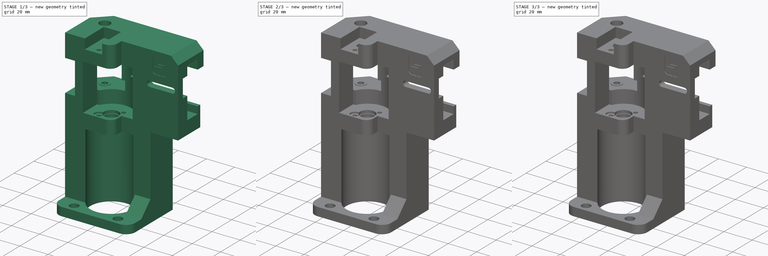
[diagram: build sequence overview — one tinted view per stage of 3, left to right]
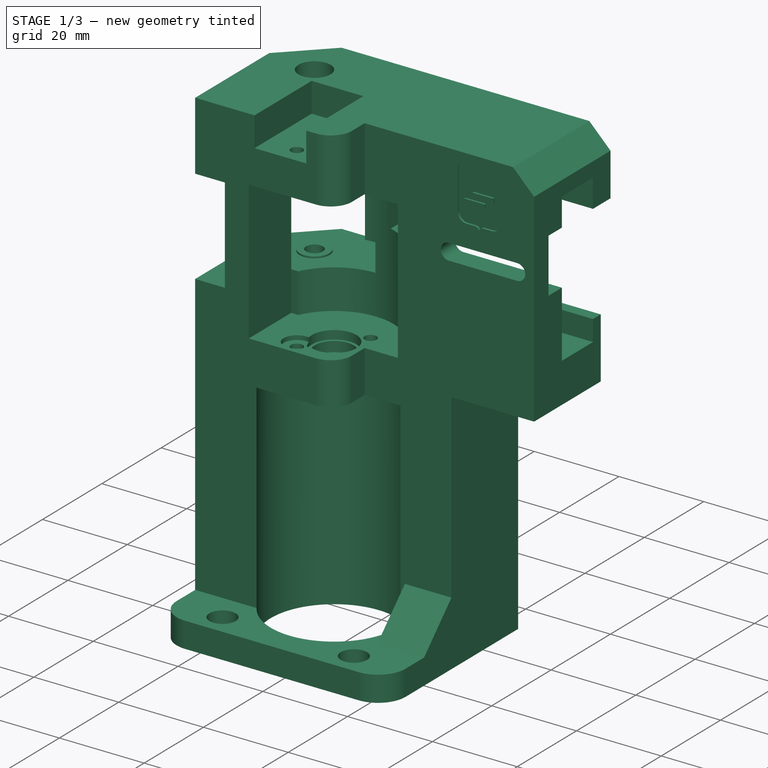
[diagram: stage 1 of 3 — iso view after this stage's code; geometry added in this stage tinted green]
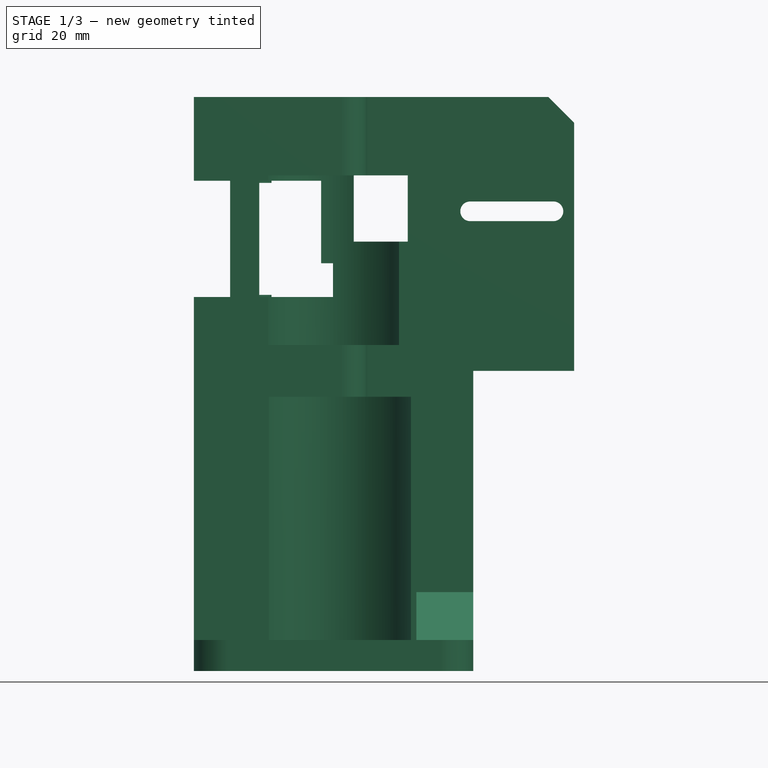
[diagram: stage 1 of 3 — front view after this stage's code; geometry added in this stage tinted green]
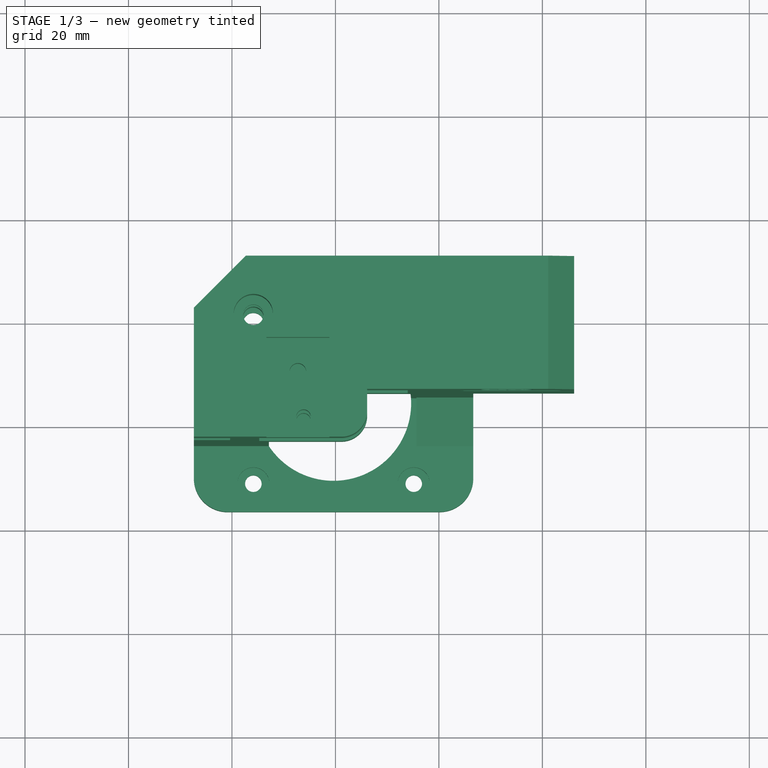
[diagram: stage 1 of 3 — top view after this stage's code; geometry added in this stage tinted green]
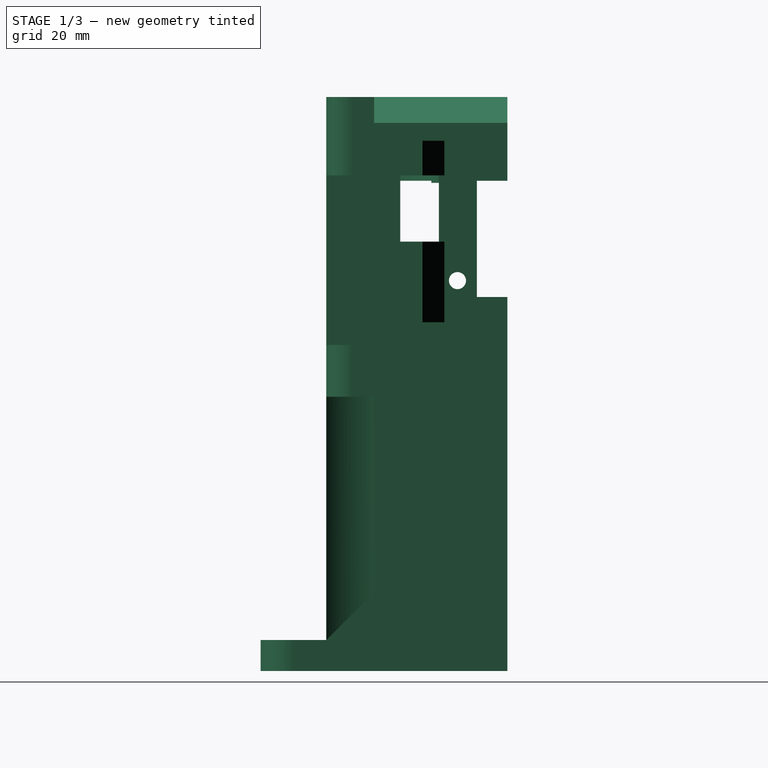
[diagram: stage 1 of 3 — right view after this stage's code; geometry added in this stage tinted green]
FCSTD DOCUMENT  (FreeCAD 1.0R38641 +468 (Git))
Label: k1_motor_mount_couplers_stock_left
License: All rights reserved
LicenseURL: https://en.wikipedia.org/wiki/All_rights_reserved
objects: App::Link×9, PartDesign::Pad×3, PartDesign::Pocket×3, Sketcher::SketchObject×2, Part::Feature×1, PartDesign::FeatureBase×1, PartDesign::Line×1, PartDesign::Body×1, App::Part×1
note: 27 computed .brp shape members not serialized (recipe doc carries the construction recipe); baked Part::Feature solids carry a one-line shape summary decoded from their .brp
EXTERNAL_REF file=cad_powge_pulley.FCStd obj=Part
EXTERNAL_REF file=cad_mf95zz.FCStd obj=Body
EXTERNAL_REF file=cad_motor_shaft_55mm.FCStd obj=Part__Feature
EXTERNAL_REF file=cad_20T_15mm_pulley.FCStd obj=Part
EXTERNAL_REF file=cad_nema17_42_60.FCStd obj=COMPOUND049
EXTERNAL_REF file=cad_diaphragm_coupler.FCStd obj=_764K239_NO_THREADS_Servomotor_Precision_Flexible_Shaft_Coupling013
EXTERNAL_REF file=cad_m4_35mm.FCStd obj=Part__Feature

FEATURE [Part::Feature] Part__Feature  label="step"
  shape: bbox 73.5 x 47.7 x 110.9 mm, 153 faces (baked)
FEATURE [PartDesign::FeatureBase] BaseFeature
  BaseFeature = -> Part__Feature
  Suppressed = false
FEATURE [PartDesign::Body] Body  label="k1_motor_mount_couplers_stock_left"
  AllowCompound = false
  BaseFeature = -> Part__Feature
  Group = -> [BaseFeature,DatumLine,Pad,Pad001,Sketch,Pocket,Pocket001,Pad002,Sketch002,Pocket002]
  Origin = -> Origin
  Placement = pos=(-50,-900,0) rot=(0,0,1;0rad)
  Tip = -> Pocket002
FEATURE [App::Part] Part  label="k1_motor_mount_couplers_stock_left_part"
  Group = -> [Part__Feature,Body,Link,Link001,Link002,Link003,Link004,Link005,Link006,Link007,Link008]
  Origin = -> Origin001

RESOLVED EXTERNAL PARTS (link-assembly join: the EXTERNAL_REF files above that resolve inside this repo's crawl, each included once):
---- part cad_mf95zz.FCStd = doc fcstd_1d361ef47ac8 ----
FCSTD DOCUMENT  (FreeCAD 1.0R38641 +468 (Git))
Label: cad_mf95zz
License: All rights reserved
LicenseURL: https://en.wikipedia.org/wiki/All_rights_reserved
objects: Sketcher::SketchObject×2, PartDesign::Pad×2, PartDesign::Body×1
note: 11 computed .brp shape members not serialized (recipe doc carries the construction recipe); baked Part::Feature solids carry a one-line shape summary decoded from their .brp

FEATURE [Sketcher::SketchObject] Sketch
  ArcFitTolerance = 1e-06
  AttachmentSupport = -> [XY_Plane]
  FullyConstrained = true
  MakeInternals = false
  MapMode = 5
  sketch-geometry (2):
    g0: Circle CenterX=0 CenterY=0 CenterZ=0 NormalX=0 NormalY=0 NormalZ=1 AngleXU=0 Radius=2.5
    g1: Circle CenterX=0 CenterY=0 CenterZ=0 NormalX=0 NormalY=0 NormalZ=1 AngleXU=0 Radius=4.5
  constraints (4):
    c: Coincident(g0,g-1)
    c: Coincident(g1,g0)
    c: Diameter(g1) = 9
    c: Diameter(g0) = 5
FEATURE [PartDesign::Pad] Pad
  Direction = (0,0,1)
  Length = 3
  Length2 = 10
  Profile = -> Sketch
  ReferenceAxis = -> Sketch [N_Axis]
  Refine = true
  Suppressed = false
  Type = 0
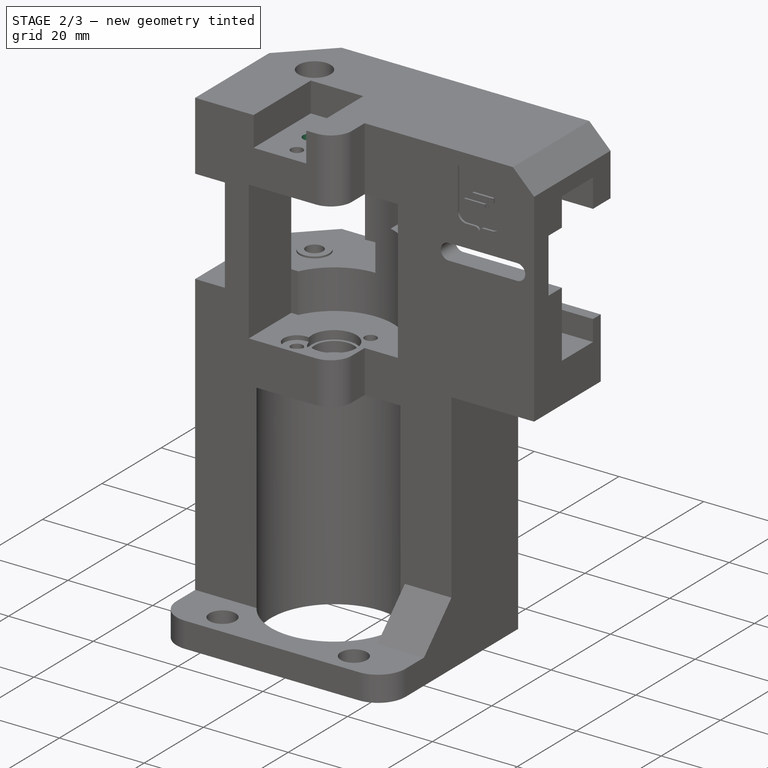
[diagram: stage 2 of 3 — iso view after this stage's code; geometry added in this stage tinted green]
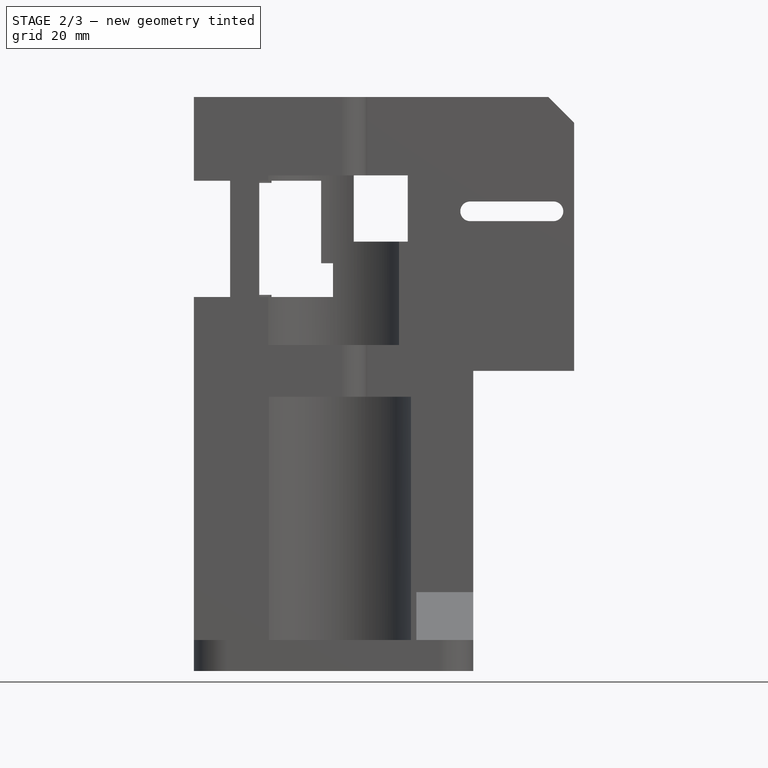
[diagram: stage 2 of 3 — front view after this stage's code; geometry added in this stage tinted green]
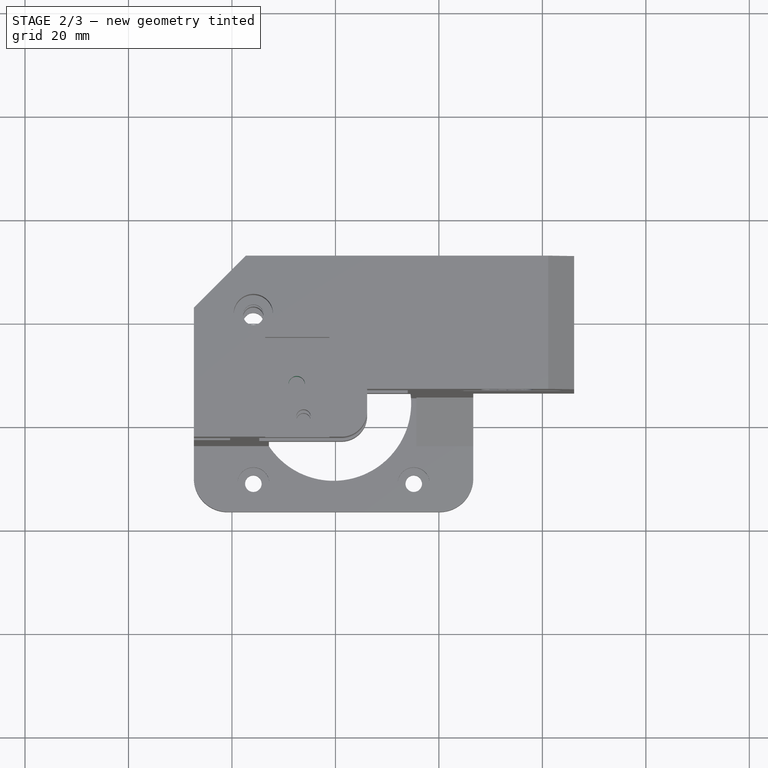
[diagram: stage 2 of 3 — top view after this stage's code; geometry added in this stage tinted green]
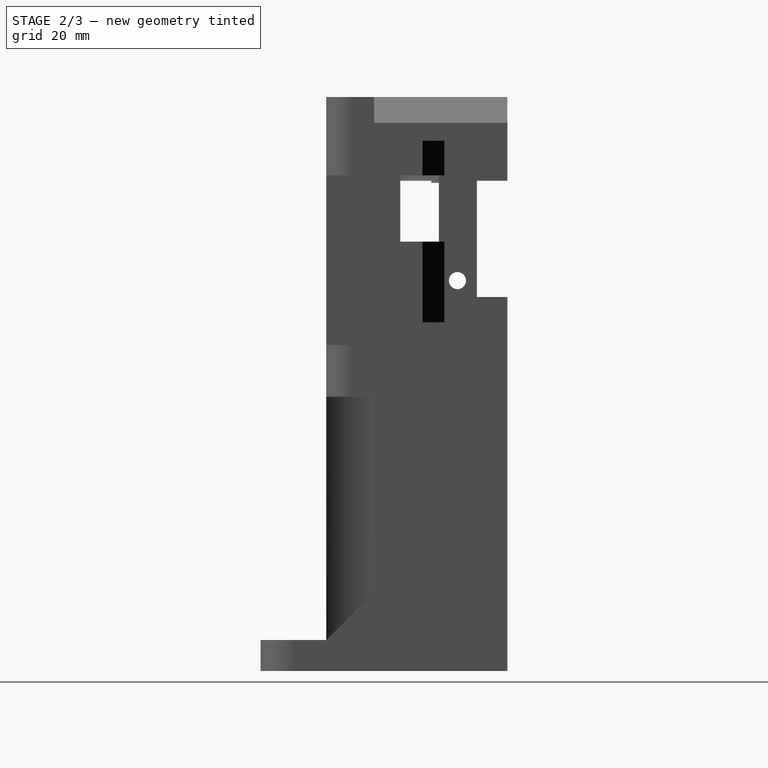
[diagram: stage 2 of 3 — right view after this stage's code; geometry added in this stage tinted green]
FEATURE [App::Link] Link  label="cad_powge_pulley_top_link"
  LinkPlacement = pos=(14.1406,100.078,20.85) rot=(0,0,1;0rad)
  LinkedObject = -> <external cad_powge_pulley.FCStd>#Part
  Placement = pos=(14.1406,100.078,20.85) rot=(0,0,1;0rad)
FEATURE [App::Link] Link001  label="cad_powge_pulley_bottom_link"
  LinkPlacement = pos=(14.1406,100.078,9.7) rot=(0,0,1;0rad)
  LinkedObject = -> <external cad_powge_pulley.FCStd>#Part
  Placement = pos=(14.1406,100.078,9.7) rot=(0,0,1;0rad)
FEATURE [App::Link] Link002  label="cad_mf95zz_top_link"
  LinkPlacement = pos=(29.6406,84.5783,37.2) rot=(0,1,0;3.14159rad)
  LinkedObject = -> <external cad_mf95zz.FCStd>#Body
  Placement = pos=(29.6406,84.5783,37.2) rot=(0,1,0;3.14159rad)
FEATURE [App::Link] Link003  label="cad_mf95zz_bottom_link"
  LinkPlacement = pos=(29.6406,84.5783,-4.4) rot=(0,0,1;3.14159rad)
  LinkedObject = -> <external cad_mf95zz.FCStd>#Body
  Placement = pos=(29.6406,84.5783,-4.4) rot=(0,0,1;3.14159rad)
FEATURE [App::Link] Link004  label="cad_motor_shaft_55mm_link"
  LinkPlacement = pos=(370.445,-290.422,175.11) rot=(0,0,1;0rad)
  LinkedObject = -> <external cad_motor_shaft_55mm.FCStd>#Part__Feature
  Placement = pos=(370.445,-290.422,175.11) rot=(0,0,1;0rad)
FEATURE [App::Link] Link005  label="cad_20T_15mm_pulley_link"
  LinkPlacement = pos=(117.263,15.5011,1.55198) rot=(0,1,0;3.14159rad)
  LinkedObject = -> <external cad_20T_15mm_pulley.FCStd>#Part
  Placement = pos=(117.263,15.5011,1.55198) rot=(0,1,0;3.14159rad)
FEATURE [App::Link] Link006  label="cad_nema17_42_60_link"
  LinkPlacement = pos=(29.6406,84.5783,-79.702) rot=(0,0,1;0rad)
  LinkedObject = -> <external cad_nema17_42_60.FCStd>#COMPOUND049
  Placement = pos=(29.6406,84.5783,-79.702) rot=(0,0,1;0rad)
FEATURE [App::Link] Link007  label="cad_diaphragm_coupler_5_5_link"
  LinkPlacement = pos=(370.37,-290.416,168.405) rot=(0,0,1;0rad)
  LinkedObject = -> <external cad_diaphragm_coupler.FCStd>#_764K239_NO_THREADS_Servomotor_Precision_Flexible_Shaft_Coupling013
  Placement = pos=(370.37,-290.416,168.405) rot=(0,0,1;0rad)
FEATURE [App::Link] Link008  label="cad_m4_35mm_link"
  LinkPlacement = pos=(14.1406,100.078,0.376278) rot=(0,0,1;0rad)
  LinkedObject = -> <external cad_m4_35mm.FCStd>#Part__Feature
  Placement = pos=(14.1406,100.078,0.376278) rot=(0,0,1;0rad)
FEATURE [PartDesign::Line] DatumLine  label="rails_mount"
  AttacherType = Attacher::AttachEngineLine
  AttachmentOffset = pos=(-0.22,-2.5,0) rot=(0,0,1;0rad)
  AttachmentSupport = -> [BaseFeature]
  Length = 20
  MapMode = 19
  Placement = pos=(72.5256,986.528,40.945) rot=(0,0,1;0rad)
  ResizeMode = 0
FEATURE [PartDesign::Pad] Pad
  BaseFeature = -> BaseFeature
  Direction = (4.42e-14,0,-1)
  Length = 10
  Length2 = 10
  Profile = -> BaseFeature [Face49]
  Refine = true
  Suppressed = false
  Type = 3
  UpToFace = -> BaseFeature [Face17]
FEATURE [PartDesign::Pad] Pad001
  BaseFeature = -> Pad
  Direction = (0,0,1)
  Length = 10
  Length2 = 10
  Profile = -> Pad [Edge129]
  Refine = true
  Suppressed = false
  Type = 3
  UpToFace = -> Pad [Face140]
FEATURE [Sketcher::SketchObject] Sketch
  ArcFitTolerance = 1e-06
  AttachmentSupport = -> [Pad001]
  ExternalGeometry = -> [DatumLine]
  FullyConstrained = true
  MakeInternals = false
  MapMode = 5
  Placement = pos=(0,-9.3e-15,40.945) rot=(0,0,1;0rad)
  sketch-geometry (1):
    g0: Circle CenterX=72.5256 CenterY=986.528 CenterZ=0 NormalX=0 NormalY=0 NormalZ=1 AngleXU=0 Radius=1.6
  constraints (2):
    c: Coincident(g0,g-3)
    c: Diameter(g0) = 3.2
FEATURE [PartDesign::Pocket] Pocket  label="mount_hole"
  BaseFeature = -> Pad001
  Direction = (0,0,-1)
  Length = 10
  Length2 = 5
  Profile = -> Sketch
  ReferenceAxis = -> Sketch [N_Axis]
  Refine = true
  Suppressed = false
  Type = 0
FEATURE [PartDesign::Pocket] Pocket001  label="move_left_wall"
  BaseFeature = -> Pocket
  Direction = (-1,0,0)
  Length = 0.225
  Length2 = 5
  Profile = -> Pocket [Face18]
  Refine = true
  Suppressed = false
  Type = 0
FEATURE [Sketcher::SketchObject] Sketch001
  ArcFitTolerance = 1e-06
  AttachmentSupport = -> [Pad]
  FullyConstrained = true
  MakeInternals = false
  MapMode = 5
  Placement = pos=(0,0,3) rot=(0,0,1;0rad)
  sketch-geometry (2):
    g0: Circle CenterX=0 CenterY=0 CenterZ=0 NormalX=0 NormalY=0 NormalZ=1 AngleXU=0 Radius=5.1
    g1: Circle CenterX=0 CenterY=0 CenterZ=0 NormalX=0 NormalY=0 NormalZ=1 AngleXU=0 Radius=2.5
  constraints (4):
    c: Coincident(g0,g-1)
    c: Coincident(g1,g0)
    c: Diameter(g1) = 5
    c: Diameter(g0) = 10.2
FEATURE [PartDesign::Pad] Pad001
  BaseFeature = -> Pad
  Direction = (0,0,1)
  Length = 0.6
  Length2 = 10
  Profile = -> Sketch001
  ReferenceAxis = -> Sketch001 [N_Axis]
  Refine = true
  Reversed = true
  Suppressed = false
  Type = 0
FEATURE [PartDesign::Body] Body  label="cad_mf95zz"
  AllowCompound = false
  Group = -> [Sketch,Pad,Sketch001,Pad001]
  Origin = -> Origin
  Tip = -> Pad001
---- part cad_powge_pulley.FCStd = doc fcstd_d49da9a9e340 ----
FCSTD DOCUMENT  (FreeCAD 1.0R38641 +468 (Git))
Label: cad_powge_pulley
License: All rights reserved
LicenseURL: https://en.wikipedia.org/wiki/All_rights_reserved
objects: Sketcher::SketchObject×1, PartDesign::Revolution×1, PartDesign::Body×1, App::Part×1
note: 6 computed .brp shape members not serialized (recipe doc carries the construction recipe); baked Part::Feature solids carry a one-line shape summary decoded from their .brp

FEATURE [Sketcher::SketchObject] Sketch
  ArcFitTolerance = 1e-06
  AttachmentSupport = -> [XZ_Plane]
  FullyConstrained = true
  MakeInternals = false
  MapMode = 5
  Placement = pos=(0,0,0) rot=(1,0,0;1.5708rad)
  sketch-geometry (8):
    g0: LineSegment StartX=6.1 StartY=9.3 StartZ=0 EndX=6.1 EndY=1.2 EndZ=0
    g1: LineSegment StartX=6.1 StartY=1.2 StartZ=0 EndX=8 EndY=1.2 EndZ=0
    g2: LineSegment StartX=8 StartY=1.2 StartZ=0 EndX=8 EndY=0 EndZ=0
    g3: LineSegment StartX=8 StartY=0 StartZ=0 EndX=2 EndY=0 EndZ=0
    g4: LineSegment StartX=2 StartY=0 StartZ=0 EndX=2 EndY=10.5 EndZ=0
    g5: LineSegment StartX=2 StartY=10.5 StartZ=0 EndX=8 EndY=10.5 EndZ=0
    g6: LineSegment StartX=8 StartY=10.5 StartZ=0 EndX=8 EndY=9.3 EndZ=0
    g7: LineSegment StartX=8 StartY=9.3 StartZ=0 EndX=6.1 EndY=9.3 EndZ=0
  constraints (24):
    c: Vertical(g0)
    c: Coincident(g1,g0)
    c: Horizontal(g1)
    c: Coincident(g2,g1)
    c: PointOnObject(g2,g-1)
    c: Vertical(g2)
    c: Coincident(g3,g2)
    c: PointOnObject(g3,g-1)
    c: Coincident(g4,g3)
    c: Vertical(g4)
    c: Coincident(g5,g4)
    c: Horizontal(g5)
    c: Coincident(g6,g5)
    c: Vertical(g6)
    c: Coincident(g7,g6)
    c: Horizontal(g7)
    c: Coincident(g0,g7)
    c: Equal(g5,g3)
    c: Equal(g6,g2)
    c: Distance(g4,g-2) = 2
    c: Distance(g5,g-2) = 8
    c: DistanceY(g0,g0) = 8.1
    c: DistanceY(g4,g4) = 10.5
    c: Distance(g0,g-2) = 6.1
FEATURE [PartDesign::Revolution] Revolution
  Angle = 360
  Angle2 = 60
  Axis = (0,2e-16,1)
  Base = (0,0,0)
  Placement = pos=(0,0,0) rot=(1,0,0;1.5708rad)
  Profile = -> Sketch
  ReferenceAxis = -> Sketch [V_Axis]
  Refine = true
  Reversed = true
  Suppressed = false
  Type = 0
FEATURE [PartDesign::Body] Body  label="powge_pulley"
  AllowCompound = false
  Group = -> [Sketch,Revolution]
  Origin = -> Origin
  Tip = -> Revolution
FEATURE [App::Part] Part  label="powge_pulley_part"
  Group = -> [Body]
  Origin = -> Origin001
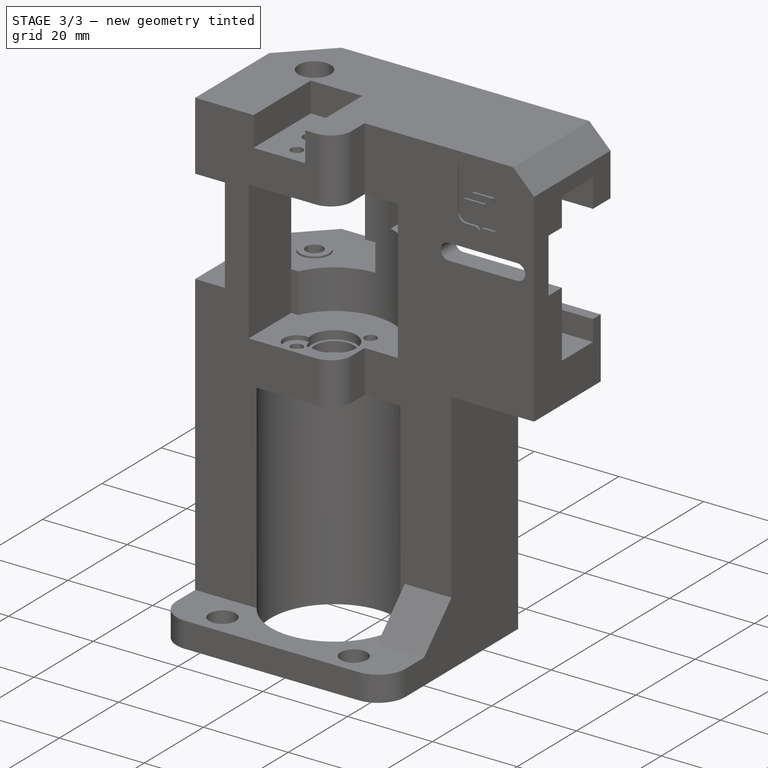
[diagram: stage 3 of 3 — iso view after this stage's code; geometry added in this stage tinted green]
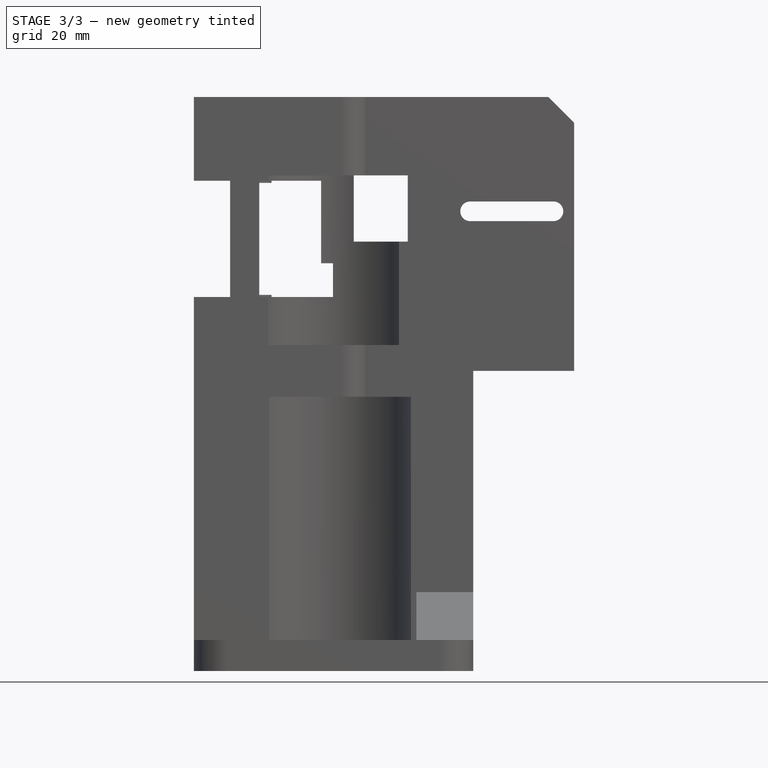
[diagram: stage 3 of 3 — front view after this stage's code; geometry added in this stage tinted green]
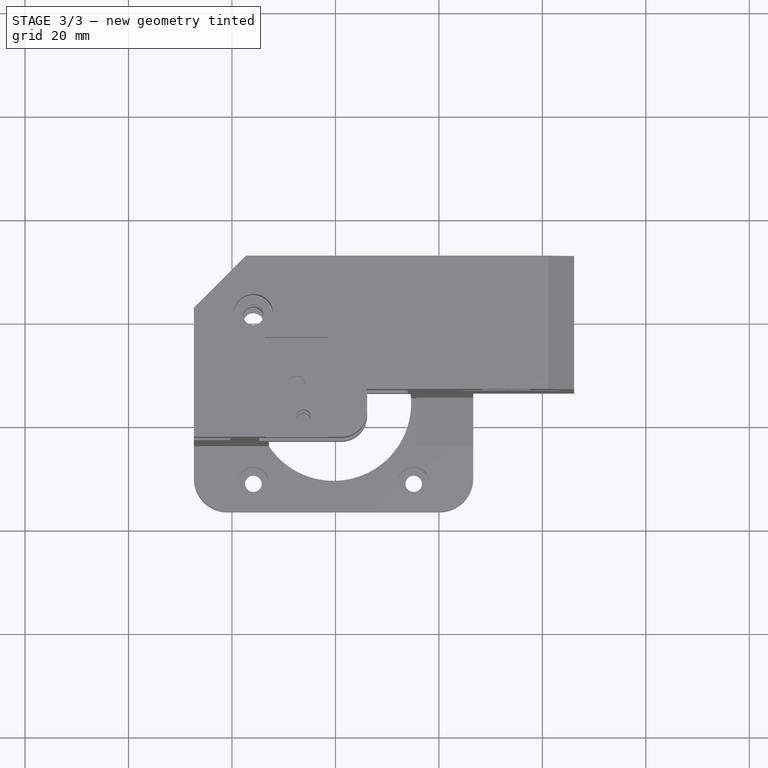
[diagram: stage 3 of 3 — top view after this stage's code; geometry added in this stage tinted green]
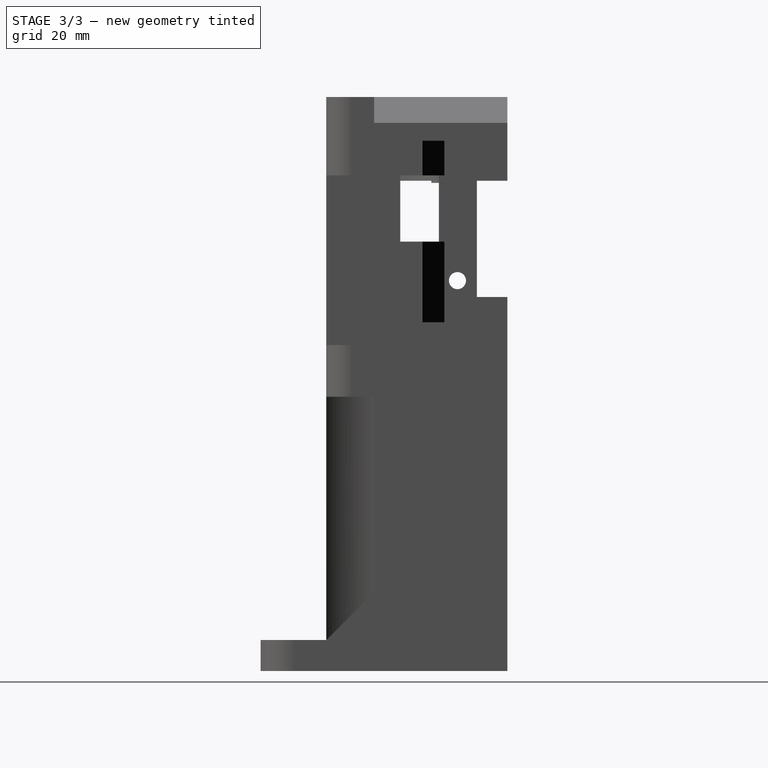
[diagram: stage 3 of 3 — right view after this stage's code; geometry added in this stage tinted green]
FEATURE [PartDesign::Pad] Pad002  label="move_right_wall"
  BaseFeature = -> Pocket001
  Direction = (-1,0,0)
  Length = 0.215
  Length2 = 10
  Profile = -> Pocket001 [Face9]
  Refine = true
  Suppressed = false
  Type = 0
FEATURE [Sketcher::SketchObject] Sketch002
  ArcFitTolerance = 1e-06
  AttachmentSupport = -> [Pad002]
  ExternalGeometry = -> [DatumLine]
  FullyConstrained = true
  MakeInternals = false
  MapMode = 5
  Placement = pos=(-6.26e-13,-1.774e-13,32.8) rot=(1,0,0;3.14159rad)
  sketch-geometry (1):
    g0: Circle CenterX=72.5256 CenterY=-986.528 CenterZ=0 NormalX=0 NormalY=0 NormalZ=1 AngleXU=0 Radius=1.95
  constraints (2):
    c: Coincident(g0,g-3)
    c: Diameter(g0) = 3.9
FEATURE [PartDesign::Pocket] Pocket002  label="rail_heat_insert"
  BaseFeature = -> Pad002
  Direction = (-1.91e-14,-5.4e-15,1)
  Length = 5.1
  Length2 = 5
  Profile = -> Sketch002
  ReferenceAxis = -> Sketch002 [N_Axis]
  Refine = true
  Suppressed = false
  Type = 0
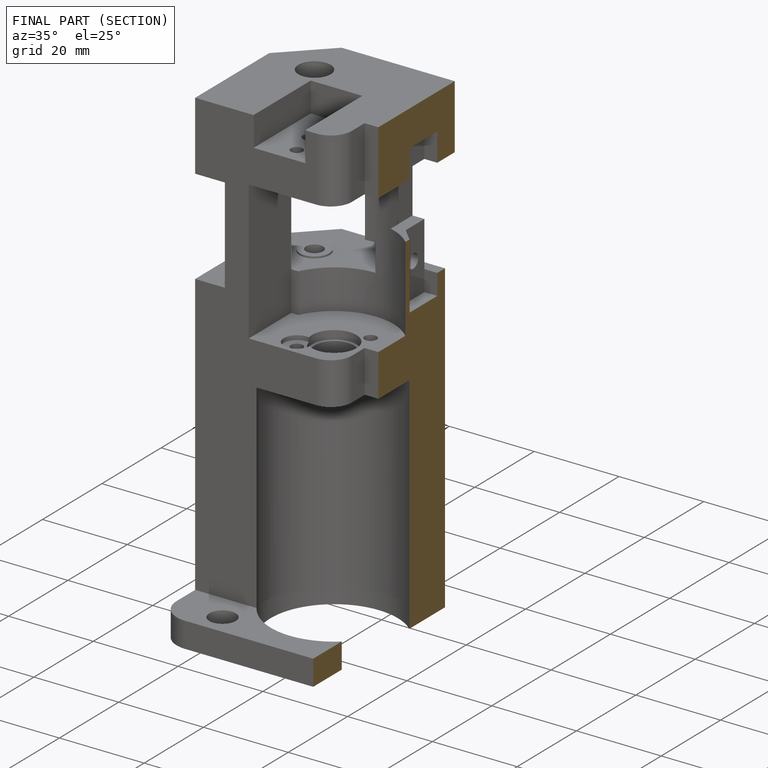
[diagram: finished part — half-section view (interior)]
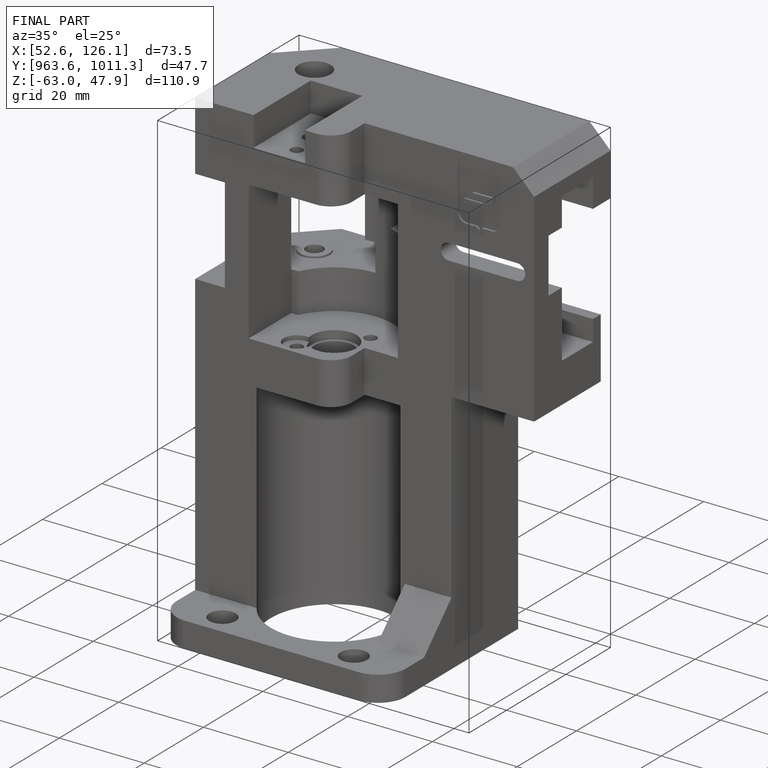
[diagram: finished part — iso view with bounding-box wireframe]
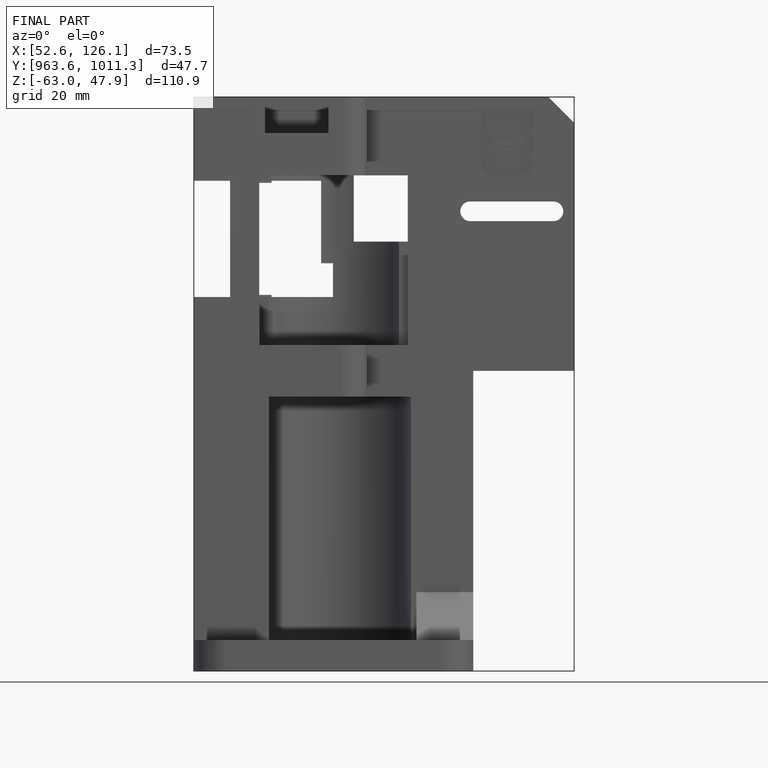
[diagram: finished part — front view with bounding-box wireframe]
